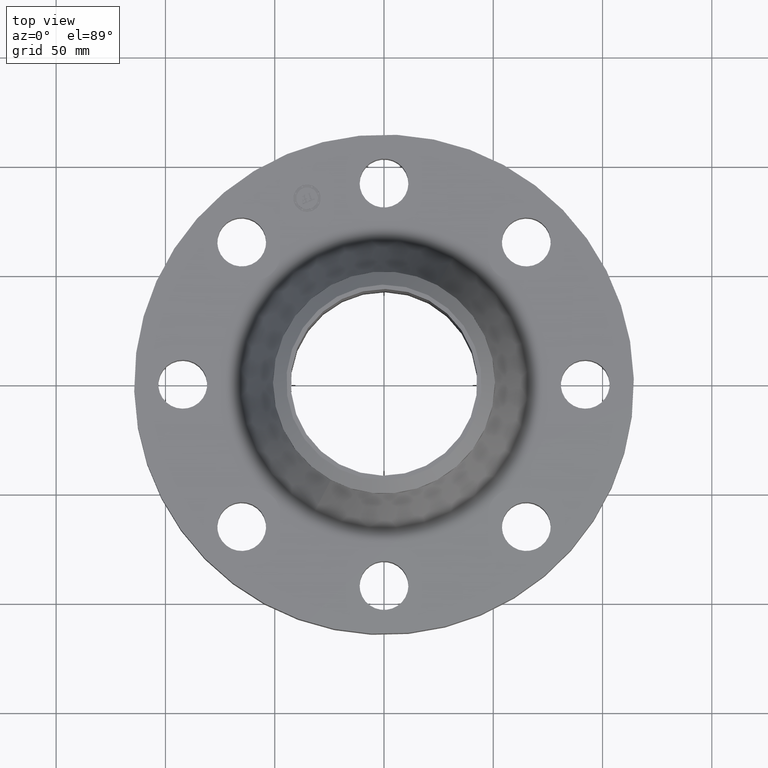
[diagram: clean part render]
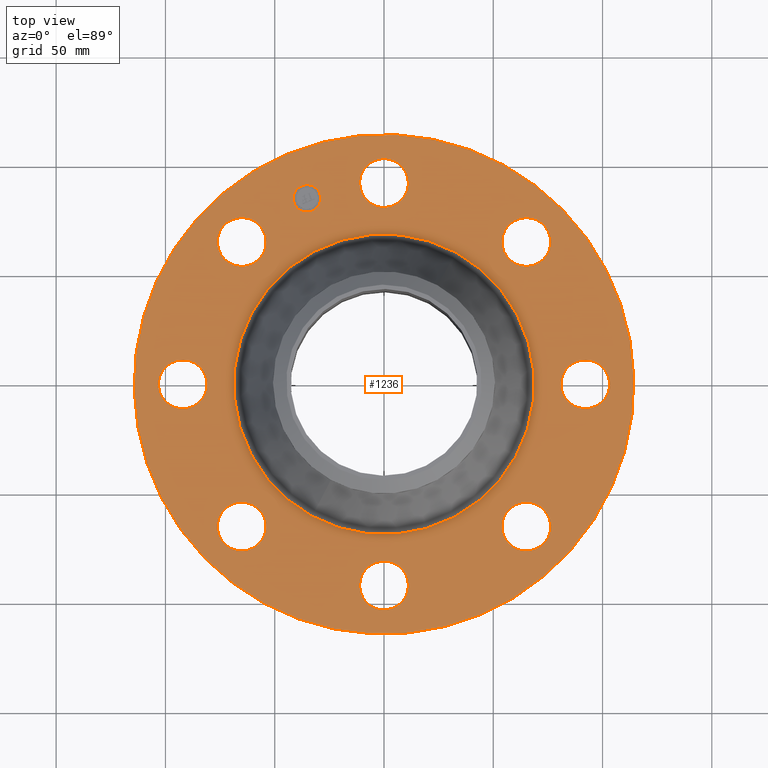
[diagram: same view with one face highlighted and labeled with its STEP entity id]
A machine part, top view. The second image highlights one B-rep face of the part: STEP entity #1236.
In plain terms, the highlighted planar face has unit normal (0, 0, -1).
Its self-contained STEP definition (entity closure, byte-faithful):
#65=AXIS2_PLACEMENT_3D('Circle Axis2P3D',#63,#64,$) ;
#90=AXIS2_PLACEMENT_3D('Circle Axis2P3D',#88,#89,$) ;
#130=AXIS2_PLACEMENT_3D('Circle Axis2P3D',#128,#129,$) ;
#154=AXIS2_PLACEMENT_3D('Circle Axis2P3D',#152,#153,$) ;
#171=AXIS2_PLACEMENT_3D('Circle Axis2P3D',#169,#170,$) ;
#206=AXIS2_PLACEMENT_3D('Circle Axis2P3D',#204,#205,$) ;
#661=AXIS2_PLACEMENT_3D('Circle Axis2P3D',#659,#660,$) ;
#673=AXIS2_PLACEMENT_3D('Circle Axis2P3D',#671,#672,$) ;
#704=AXIS2_PLACEMENT_3D('Circle Axis2P3D',#702,#703,$) ;
#716=AXIS2_PLACEMENT_3D('Circle Axis2P3D',#714,#715,$) ;
#747=AXIS2_PLACEMENT_3D('Circle Axis2P3D',#745,#746,$) ;
#759=AXIS2_PLACEMENT_3D('Circle Axis2P3D',#757,#758,$) ;
#790=AXIS2_PLACEMENT_3D('Circle Axis2P3D',#788,#789,$) ;
#802=AXIS2_PLACEMENT_3D('Circle Axis2P3D',#800,#801,$) ;
#833=AXIS2_PLACEMENT_3D('Circle Axis2P3D',#831,#832,$) ;
#845=AXIS2_PLACEMENT_3D('Circle Axis2P3D',#843,#844,$) ;
#876=AXIS2_PLACEMENT_3D('Circle Axis2P3D',#874,#875,$) ;
#888=AXIS2_PLACEMENT_3D('Circle Axis2P3D',#886,#887,$) ;
#919=AXIS2_PLACEMENT_3D('Circle Axis2P3D',#917,#918,$) ;
#931=AXIS2_PLACEMENT_3D('Circle Axis2P3D',#929,#930,$) ;
#1176=AXIS2_PLACEMENT_3D('Plane Axis2P3D',#1173,#1174,#1175) ;
#1220=AXIS2_PLACEMENT_3D('Circle Axis2P3D',#1218,#1219,$) ;
#1229=AXIS2_PLACEMENT_3D('Circle Axis2P3D',#1227,#1228,$) ;
#46=CARTESIAN_POINT('Vertex',(-0.386136327233,3.835947237,1.12)) ;
#60=CARTESIAN_POINT('Vertex',(0.386136327233,3.41405276303,1.12)) ;
#63=CARTESIAN_POINT('Axis2P3D Location',(0.,3.62500000001,1.12)) ;
#88=CARTESIAN_POINT('Axis2P3D Location',(0.,3.62500000001,1.12)) ;
#125=CARTESIAN_POINT('Vertex',(-2.15741492373,-3.94912152852,1.12)) ;
#128=CARTESIAN_POINT('Axis2P3D Location',(0.,0.,1.12)) ;
#132=CARTESIAN_POINT('Vertex',(2.15741492373,3.94912152852,1.12)) ;
#152=CARTESIAN_POINT('Axis2P3D Location',(0.,0.,1.12)) ;
#169=CARTESIAN_POINT('Axis2P3D Location',(0.,0.,1.12)) ;
#173=CARTESIAN_POINT('Vertex',(1.29769547012,2.37541562457,1.12)) ;
#175=CARTESIAN_POINT('Vertex',(-1.29769547012,-2.37541562457,1.12)) ;
#204=CARTESIAN_POINT('Axis2P3D Location',(0.,0.,1.12)) ;
#649=CARTESIAN_POINT('Vertex',(-2.43938468811,-2.98546391901,1.12)) ;
#656=CARTESIAN_POINT('Vertex',(-2.68713947551,-2.14106024462,1.12)) ;
#659=CARTESIAN_POINT('Axis2P3D Location',(-2.56326208181,-2.56326208181,1.12)) ;
#671=CARTESIAN_POINT('Axis2P3D Location',(-2.56326208181,-2.56326208181,1.12)) ;
#692=CARTESIAN_POINT('Vertex',(3.835947237,0.386136327233,1.12)) ;
#699=CARTESIAN_POINT('Vertex',(3.41405276303,-0.386136327233,1.12)) ;
#702=CARTESIAN_POINT('Axis2P3D Location',(3.62500000001,2.21967232346E-016,1.12)) ;
#714=CARTESIAN_POINT('Axis2P3D Location',(3.62500000001,2.21967232346E-016,1.12)) ;
#735=CARTESIAN_POINT('Vertex',(-3.835947237,-0.386136327233,1.12)) ;
#742=CARTESIAN_POINT('Vertex',(-3.41405276303,0.386136327233,1.12)) ;
#745=CARTESIAN_POINT('Axis2P3D Location',(-3.62500000001,-6.65901697039E-016,1.12)) ;
#757=CARTESIAN_POINT('Axis2P3D Location',(-3.62500000001,-6.65901697039E-016,1.12)) ;
#778=CARTESIAN_POINT('Vertex',(2.98546391901,-2.43938468811,1.12)) ;
#785=CARTESIAN_POINT('Vertex',(2.14106024462,-2.68713947551,1.12)) ;
#788=CARTESIAN_POINT('Axis2P3D Location',(2.56326208181,-2.56326208181,1.12)) ;
#800=CARTESIAN_POINT('Axis2P3D Location',(2.56326208181,-2.56326208181,1.12)) ;
#821=CARTESIAN_POINT('Vertex',(-2.98546391901,2.43938468811,1.12)) ;
#828=CARTESIAN_POINT('Vertex',(-2.14106024462,2.68713947551,1.12)) ;
#831=CARTESIAN_POINT('Axis2P3D Location',(-2.56326208181,2.56326208181,1.12)) ;
#843=CARTESIAN_POINT('Axis2P3D Location',(-2.56326208181,2.56326208181,1.12)) ;
#864=CARTESIAN_POINT('Vertex',(0.386136327233,-3.835947237,1.12)) ;
#871=CARTESIAN_POINT('Vertex',(-0.386136327233,-3.41405276303,1.12)) ;
#874=CARTESIAN_POINT('Axis2P3D Location',(4.43934464693E-016,-3.62500000001,1.12)) ;
#886=CARTESIAN_POINT('Axis2P3D Location',(4.43934464693E-016,-3.62500000001,1.12)) ;
#907=CARTESIAN_POINT('Vertex',(2.43938468811,2.98546391901,1.12)) ;
#914=CARTESIAN_POINT('Vertex',(2.68713947551,2.14106024462,1.12)) ;
#917=CARTESIAN_POINT('Axis2P3D Location',(2.56326208181,2.56326208181,1.12)) ;
#929=CARTESIAN_POINT('Axis2P3D Location',(2.56326208181,2.56326208181,1.12)) ;
#1173=CARTESIAN_POINT('Axis2P3D Location',(0.,4.50000000002,1.12)) ;
#1218=CARTESIAN_POINT('Axis2P3D Location',(-1.38722744233,3.34906330537,1.12)) ;
#1222=CARTESIAN_POINT('Vertex',(-1.61588762663,3.25434915586,1.12)) ;
#1224=CARTESIAN_POINT('Vertex',(-1.15856725803,3.44377745488,1.12)) ;
#1227=CARTESIAN_POINT('Axis2P3D Location',(-1.38722744233,3.34906330537,1.12)) ;
#64=DIRECTION('Axis2P3D Direction',(0.,-0.,-0.0393700787402)) ;
#89=DIRECTION('Axis2P3D Direction',(0.,-0.,-0.0393700787402)) ;
#129=DIRECTION('Axis2P3D Direction',(0.,0.,-0.0393700787402)) ;
#153=DIRECTION('Axis2P3D Direction',(0.,0.,-0.0393700787402)) ;
#170=DIRECTION('Axis2P3D Direction',(0.,0.,-0.0393700787402)) ;
#205=DIRECTION('Axis2P3D Direction',(0.,0.,-0.0393700787402)) ;
#660=DIRECTION('Axis2P3D Direction',(0.,0.,-0.0393700787402)) ;
#672=DIRECTION('Axis2P3D Direction',(0.,0.,-0.0393700787402)) ;
#703=DIRECTION('Axis2P3D Direction',(0.,-0.,-0.0393700787402)) ;
#715=DIRECTION('Axis2P3D Direction',(0.,-0.,-0.0393700787402)) ;
#746=DIRECTION('Axis2P3D Direction',(0.,0.,-0.0393700787402)) ;
#758=DIRECTION('Axis2P3D Direction',(0.,0.,-0.0393700787402)) ;
#789=DIRECTION('Axis2P3D Direction',(-0.,0.,-0.0393700787402)) ;
#801=DIRECTION('Axis2P3D Direction',(-0.,0.,-0.0393700787402)) ;
#832=DIRECTION('Axis2P3D Direction',(0.,0.,-0.0393700787402)) ;
#844=DIRECTION('Axis2P3D Direction',(0.,0.,-0.0393700787402)) ;
#875=DIRECTION('Axis2P3D Direction',(-0.,0.,-0.0393700787402)) ;
#887=DIRECTION('Axis2P3D Direction',(-0.,0.,-0.0393700787402)) ;
#918=DIRECTION('Axis2P3D Direction',(0.,-0.,-0.0393700787402)) ;
#930=DIRECTION('Axis2P3D Direction',(0.,-0.,-0.0393700787402)) ;
#1174=DIRECTION('Axis2P3D Direction',(0.,0.,-0.0393700787402)) ;
#1175=DIRECTION('Axis2P3D XDirection',(0.0393700787402,0.,0.)) ;
#1219=DIRECTION('Axis2P3D Direction',(0.,0.,-0.0393700787402)) ;
#1228=DIRECTION('Axis2P3D Direction',(0.,0.,-0.0393700787402)) ;
#1179=ORIENTED_EDGE('',*,*,#156,.F.) ;
#1180=ORIENTED_EDGE('',*,*,#134,.F.) ;
#1183=ORIENTED_EDGE('',*,*,#67,.T.) ;
#1184=ORIENTED_EDGE('',*,*,#92,.T.) ;
#1187=ORIENTED_EDGE('',*,*,#208,.T.) ;
#1188=ORIENTED_EDGE('',*,*,#177,.T.) ;
#1191=ORIENTED_EDGE('',*,*,#933,.T.) ;
#1192=ORIENTED_EDGE('',*,*,#921,.T.) ;
#1195=ORIENTED_EDGE('',*,*,#718,.T.) ;
#1196=ORIENTED_EDGE('',*,*,#706,.T.) ;
#1199=ORIENTED_EDGE('',*,*,#804,.T.) ;
#1200=ORIENTED_EDGE('',*,*,#792,.T.) ;
#1203=ORIENTED_EDGE('',*,*,#890,.T.) ;
#1204=ORIENTED_EDGE('',*,*,#878,.T.) ;
#1207=ORIENTED_EDGE('',*,*,#675,.T.) ;
#1208=ORIENTED_EDGE('',*,*,#663,.T.) ;
#1211=ORIENTED_EDGE('',*,*,#761,.T.) ;
#1212=ORIENTED_EDGE('',*,*,#749,.T.) ;
#1215=ORIENTED_EDGE('',*,*,#847,.T.) ;
#1216=ORIENTED_EDGE('',*,*,#835,.T.) ;
#1233=ORIENTED_EDGE('',*,*,#1226,.T.) ;
#1234=ORIENTED_EDGE('',*,*,#1231,.T.) ;
#1185=FACE_BOUND('',#1182,.T.) ;
#1189=FACE_BOUND('',#1186,.T.) ;
#1193=FACE_BOUND('',#1190,.T.) ;
#1197=FACE_BOUND('',#1194,.T.) ;
#1201=FACE_BOUND('',#1198,.T.) ;
#1205=FACE_BOUND('',#1202,.T.) ;
#1209=FACE_BOUND('',#1206,.T.) ;
#1213=FACE_BOUND('',#1210,.T.) ;
#1217=FACE_BOUND('',#1214,.T.) ;
#1235=FACE_BOUND('',#1232,.T.) ;
#1236=ADVANCED_FACE('PartBody',(#1181,#1185,#1189,#1193,#1197,#1201,#1205,#1209,#1213,#1217,#1235),#1177,.F.) ;
#66=CIRCLE('generated circle',#65,0.440000000002) ;
#91=CIRCLE('generated circle',#90,0.440000000002) ;
#131=CIRCLE('generated circle',#130,4.50000000002) ;
#155=CIRCLE('generated circle',#154,4.50000000002) ;
#172=CIRCLE('generated circle',#171,2.70677167907) ;
#207=CIRCLE('generated circle',#206,2.70677167907) ;
#662=CIRCLE('generated circle',#661,0.440000000002) ;
#674=CIRCLE('generated circle',#673,0.440000000002) ;
#705=CIRCLE('generated circle',#704,0.440000000002) ;
#717=CIRCLE('generated circle',#716,0.440000000002) ;
#748=CIRCLE('generated circle',#747,0.440000000002) ;
#760=CIRCLE('generated circle',#759,0.440000000002) ;
#791=CIRCLE('generated circle',#790,0.440000000002) ;
#803=CIRCLE('generated circle',#802,0.440000000002) ;
#834=CIRCLE('generated circle',#833,0.440000000002) ;
#846=CIRCLE('generated circle',#845,0.440000000002) ;
#877=CIRCLE('generated circle',#876,0.440000000002) ;
#889=CIRCLE('generated circle',#888,0.440000000002) ;
#920=CIRCLE('generated circle',#919,0.440000000002) ;
#932=CIRCLE('generated circle',#931,0.440000000002) ;
#1221=CIRCLE('generated circle',#1220,0.247500000001) ;
#1230=CIRCLE('generated circle',#1229,0.247500000001) ;
#67=EDGE_CURVE('',#47,#61,#66,.T.) ;
#92=EDGE_CURVE('',#61,#47,#91,.T.) ;
#134=EDGE_CURVE('',#126,#133,#131,.T.) ;
#156=EDGE_CURVE('',#133,#126,#155,.T.) ;
#177=EDGE_CURVE('',#174,#176,#172,.T.) ;
#208=EDGE_CURVE('',#176,#174,#207,.T.) ;
#663=EDGE_CURVE('',#650,#657,#662,.T.) ;
#675=EDGE_CURVE('',#657,#650,#674,.T.) ;
#706=EDGE_CURVE('',#693,#700,#705,.T.) ;
#718=EDGE_CURVE('',#700,#693,#717,.T.) ;
#749=EDGE_CURVE('',#736,#743,#748,.T.) ;
#761=EDGE_CURVE('',#743,#736,#760,.T.) ;
#792=EDGE_CURVE('',#779,#786,#791,.T.) ;
#804=EDGE_CURVE('',#786,#779,#803,.T.) ;
#835=EDGE_CURVE('',#822,#829,#834,.T.) ;
#847=EDGE_CURVE('',#829,#822,#846,.T.) ;
#878=EDGE_CURVE('',#865,#872,#877,.T.) ;
#890=EDGE_CURVE('',#872,#865,#889,.T.) ;
#921=EDGE_CURVE('',#908,#915,#920,.T.) ;
#933=EDGE_CURVE('',#915,#908,#932,.T.) ;
#1226=EDGE_CURVE('',#1223,#1225,#1221,.T.) ;
#1231=EDGE_CURVE('',#1225,#1223,#1230,.T.) ;
#1178=EDGE_LOOP('',(#1179,#1180)) ;
#1182=EDGE_LOOP('',(#1183,#1184)) ;
#1186=EDGE_LOOP('',(#1187,#1188)) ;
#1190=EDGE_LOOP('',(#1191,#1192)) ;
#1194=EDGE_LOOP('',(#1195,#1196)) ;
#1198=EDGE_LOOP('',(#1199,#1200)) ;
#1202=EDGE_LOOP('',(#1203,#1204)) ;
#1206=EDGE_LOOP('',(#1207,#1208)) ;
#1210=EDGE_LOOP('',(#1211,#1212)) ;
#1214=EDGE_LOOP('',(#1215,#1216)) ;
#1232=EDGE_LOOP('',(#1233,#1234)) ;
#1181=FACE_OUTER_BOUND('',#1178,.T.) ;
#1177=PLANE('',#1176) ;
#47=VERTEX_POINT('',#46) ;
#61=VERTEX_POINT('',#60) ;
#126=VERTEX_POINT('',#125) ;
#133=VERTEX_POINT('',#132) ;
#174=VERTEX_POINT('',#173) ;
#176=VERTEX_POINT('',#175) ;
#650=VERTEX_POINT('',#649) ;
#657=VERTEX_POINT('',#656) ;
#693=VERTEX_POINT('',#692) ;
#700=VERTEX_POINT('',#699) ;
#736=VERTEX_POINT('',#735) ;
#743=VERTEX_POINT('',#742) ;
#779=VERTEX_POINT('',#778) ;
#786=VERTEX_POINT('',#785) ;
#822=VERTEX_POINT('',#821) ;
#829=VERTEX_POINT('',#828) ;
#865=VERTEX_POINT('',#864) ;
#872=VERTEX_POINT('',#871) ;
#908=VERTEX_POINT('',#907) ;
#915=VERTEX_POINT('',#914) ;
#1223=VERTEX_POINT('',#1222) ;
#1225=VERTEX_POINT('',#1224) ;